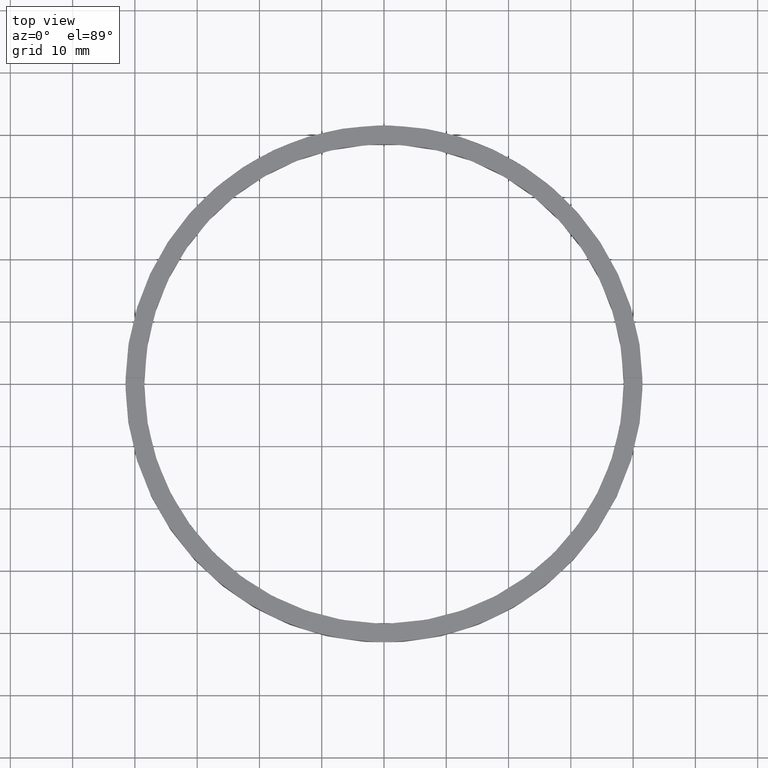
[diagram: clean part render]
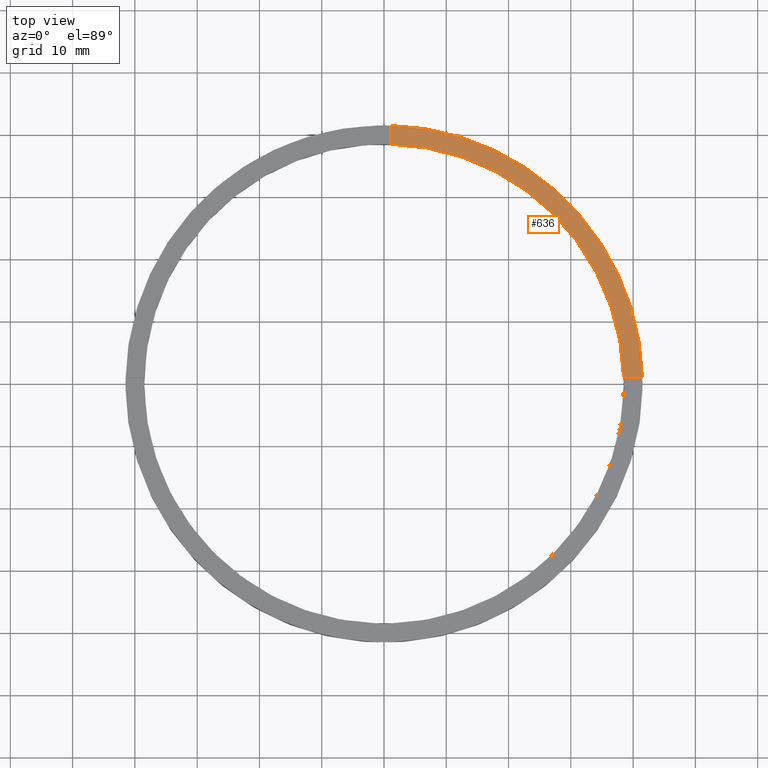
[diagram: same view with one face highlighted and labeled with its STEP entity id]
A machine part, top view. The second image highlights one B-rep face of the part: STEP entity #636.
In plain terms, the highlighted planar face has unit normal (0, 0, 1).
Its self-contained STEP definition (entity closure, byte-faithful):
#6 = EDGE_CURVE ( 'NONE', #448, #267, #406, .T. ) ;
#50 = AXIS2_PLACEMENT_3D ( 'NONE', #272, #370, #513 ) ;
#136 = DIRECTION ( 'NONE',  ( 0.000000000000000000, 0.000000000000000000, 1.000000000000000000 ) ) ;
#175 = AXIS2_PLACEMENT_3D ( 'NONE', #735, #747, #512 ) ;
#221 = LINE ( 'NONE', #390, #733 ) ;
#241 = LINE ( 'NONE', #439, #493 ) ;
#267 = VERTEX_POINT ( 'NONE', #342 ) ;
#272 = CARTESIAN_POINT ( 'NONE',  ( 0.000000000000000000, 0.000000000000000000, 4.000000000000000000 ) ) ;
#277 = VERTEX_POINT ( 'NONE', #637 ) ;
#292 = CARTESIAN_POINT ( 'NONE',  ( 0.9999999999999742428, 38.48701079585163143, 4.000000000000000000 ) ) ;
#313 = PLANE ( 'NONE',  #175 ) ;
#321 = CARTESIAN_POINT ( 'NONE',  ( 41.48795005781800427, 0.9999999999998432365, 4.000000000000000000 ) ) ;
#325 = DIRECTION ( 'NONE',  ( 1.000000000000000000, 0.000000000000000000, 0.000000000000000000 ) ) ;
#342 = CARTESIAN_POINT ( 'NONE',  ( 0.9999999999999742428, 41.48795005781799716, 4.000000000000000000 ) ) ;
#370 = DIRECTION ( 'NONE',  ( 0.000000000000000000, 0.000000000000000000, 1.000000000000000000 ) ) ;
#372 = EDGE_CURVE ( 'NONE', #448, #277, #221, .T. ) ;
#381 = AXIS2_PLACEMENT_3D ( 'NONE', #764, #136, #325 ) ;
#390 = CARTESIAN_POINT ( 'NONE',  ( 31.49999999999999289, 0.9999999999998425704, 4.000000000000000000 ) ) ;
#406 = CIRCLE ( 'NONE', #50, 41.50000000000000000 ) ;
#417 = ORIENTED_EDGE ( 'NONE', *, *, #595, .F. ) ;
#439 = CARTESIAN_POINT ( 'NONE',  ( 0.9999999999999742428, 31.50000000000000000, 4.000000000000000000 ) ) ;
#448 = VERTEX_POINT ( 'NONE', #321 ) ;
#460 = DIRECTION ( 'NONE',  ( -1.000000000000000000, -6.505213034913025371E-17, -0.000000000000000000 ) ) ;
#478 = ORIENTED_EDGE ( 'NONE', *, *, #6, .T. ) ;
#493 = VECTOR ( 'NONE', #589, 1000.000000000000000 ) ;
#497 = FACE_OUTER_BOUND ( 'NONE', #756, .T. ) ;
#512 = DIRECTION ( 'NONE',  ( 1.000000000000000000, 0.000000000000000000, -0.000000000000000000 ) ) ;
#513 = DIRECTION ( 'NONE',  ( 1.000000000000000000, 0.000000000000000000, 0.000000000000000000 ) ) ;
#529 = VERTEX_POINT ( 'NONE', #292 ) ;
#589 = DIRECTION ( 'NONE',  ( 0.000000000000000000, 1.000000000000000000, 0.000000000000000000 ) ) ;
#595 = EDGE_CURVE ( 'NONE', #529, #267, #241, .T. ) ;
#603 = EDGE_CURVE ( 'NONE', #277, #529, #755, .T. ) ;
#636 = ADVANCED_FACE ( 'NONE', ( #497 ), #313, .T. ) ;
#637 = CARTESIAN_POINT ( 'NONE',  ( 38.48701079585163853, 0.9999999999998432365, 4.000000000000000000 ) ) ;
#724 = ORIENTED_EDGE ( 'NONE', *, *, #372, .F. ) ;
#733 = VECTOR ( 'NONE', #460, 1000.000000000000000 ) ;
#735 = CARTESIAN_POINT ( 'NONE',  ( 0.000000000000000000, 0.000000000000000000, 4.000000000000000000 ) ) ;
#747 = DIRECTION ( 'NONE',  ( 0.000000000000000000, 0.000000000000000000, 1.000000000000000000 ) ) ;
#755 = CIRCLE ( 'NONE', #381, 38.50000000000000000 ) ;
#756 = EDGE_LOOP ( 'NONE', ( #417, #761, #724, #478 ) ) ;
#761 = ORIENTED_EDGE ( 'NONE', *, *, #603, .F. ) ;
#764 = CARTESIAN_POINT ( 'NONE',  ( 0.000000000000000000, 0.000000000000000000, 4.000000000000000000 ) ) ;